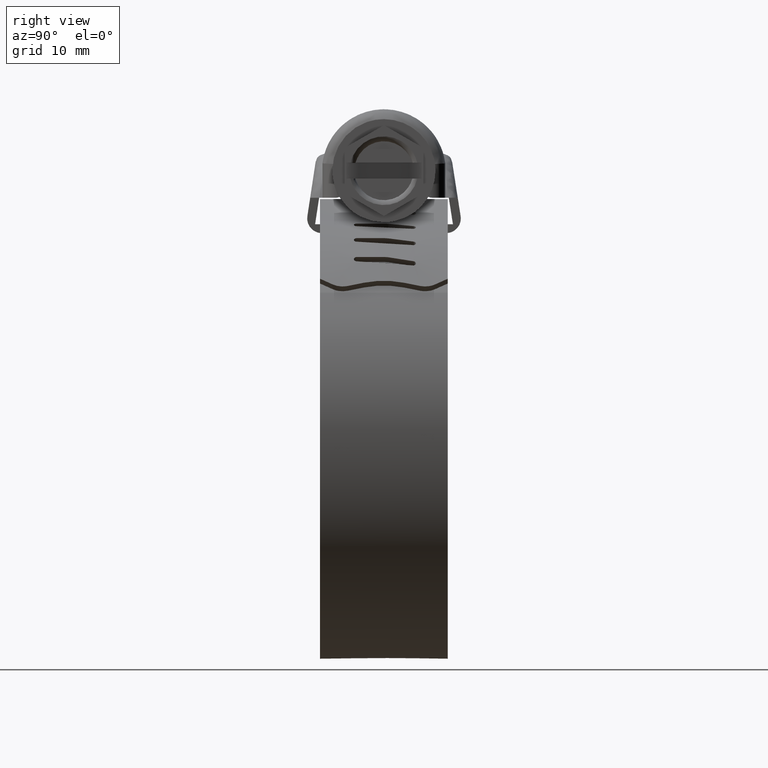
[diagram: clean part render]
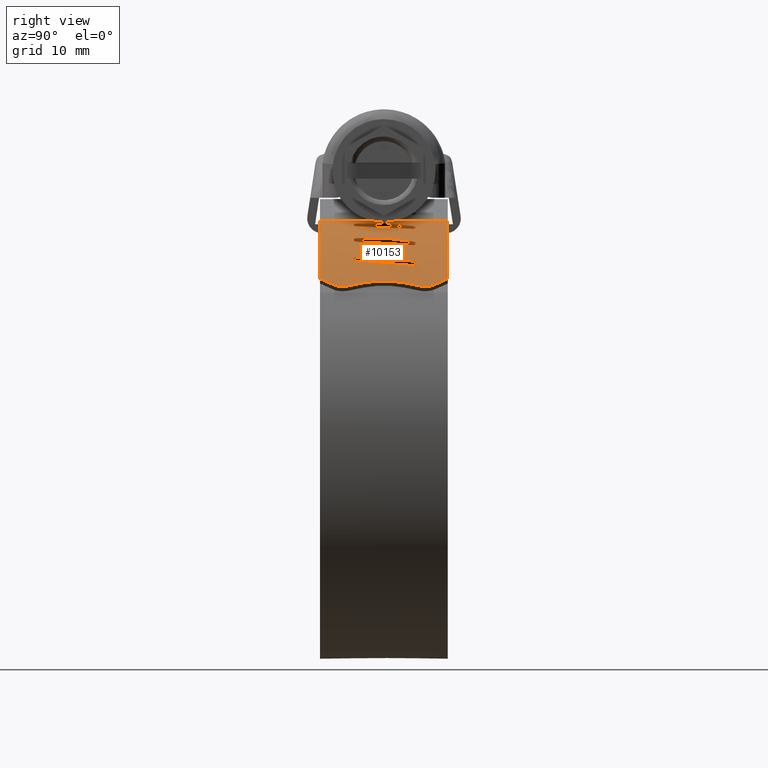
[diagram: same view with one face highlighted and labeled with its STEP entity id]
A machine part, right view. The second image highlights one B-rep face of the part: STEP entity #10153.
In plain terms, the highlighted face is a freeform B-spline surface patch.
Its self-contained STEP definition (entity closure, byte-faithful):
#3702=CARTESIAN_POINT('',(18.860235768504051,-2.061301204482775,4.422310830532255));
#3703=VERTEX_POINT('',#3702);
#3704=CARTESIAN_POINT('',(18.860235768504001,2.061301204482505,4.422310830532265));
#3705=VERTEX_POINT('',#3704);
#3706=CARTESIAN_POINT('',(18.860235768504051,-2.061301204482775,4.422310830532255));
#3707=CARTESIAN_POINT('',(18.751407555141469,-1.452905893504734,4.543712181722550));
#3708=CARTESIAN_POINT('',(18.666232714028379,-0.565320939401362,4.638727439982176));
#3709=CARTESIAN_POINT('',(18.689032266195650,0.825941613407154,4.613293810648815));
#3710=CARTESIAN_POINT('',(18.773964199948580,1.578773815926115,4.518549523315520));
#3711=CARTESIAN_POINT('',(18.860235768504001,2.061301204482505,4.422310830532265));
#3712=B_SPLINE_CURVE_WITH_KNOTS('',3,(#3706,#3707,#3708,#3709,#3710,#3711),.UNSPECIFIED.,.F.,.U.,(4,1,1,4),(5.695947E-009,1.889536444151968,2.671408620243658,4.170007465102428),.UNSPECIFIED.);
#3713=EDGE_CURVE('',#3703,#3705,#3712,.T.);
#3755=CARTESIAN_POINT('',(19.144484927580951,3.681800700682910,4.095337982331530));
#3756=VERTEX_POINT('',#3755);
#3757=CARTESIAN_POINT('',(19.002255019676099,5.226117512658591,4.260517398147540));
#3758=VERTEX_POINT('',#3757);
#3759=CARTESIAN_POINT('',(19.144484927580951,3.681800700682910,4.095337982331530));
#3760=CARTESIAN_POINT('',(19.181063190383171,3.891409389828287,4.052745419829592));
#3761=CARTESIAN_POINT('',(19.203570231554760,4.244876938587939,4.026496191575150));
#3762=CARTESIAN_POINT('',(19.145917114090899,4.774362003495258,4.093469775718822));
#3763=CARTESIAN_POINT('',(19.064005317519481,5.068823243936663,4.188708474425087));
#3764=CARTESIAN_POINT('',(19.002255019676099,5.226117512658591,4.260517398147540));
#3765=B_SPLINE_CURVE_WITH_KNOTS('',3,(#3759,#3760,#3761,#3762,#3763,#3764),.UNSPECIFIED.,.F.,.U.,(4,1,1,4),(0.000000022543403,0.650943980860512,1.051511778456674,1.602310410800159),.UNSPECIFIED.);
#3766=EDGE_CURVE('',#3756,#3758,#3765,.T.);
#3808=CARTESIAN_POINT('',(19.002255019676198,-5.226117512659011,4.260517398147460));
#3809=VERTEX_POINT('',#3808);
#3810=CARTESIAN_POINT('',(19.144484927580951,-3.681800700683175,4.095337982331520));
#3811=VERTEX_POINT('',#3810);
#3812=CARTESIAN_POINT('',(19.002255019676198,-5.226117512659011,4.260517398147460));
#3813=CARTESIAN_POINT('',(19.075139575640510,-5.040237855394073,4.175550735166612));
#3814=CARTESIAN_POINT('',(19.170714116674691,-4.670845714890303,4.064199538139049));
#3815=CARTESIAN_POINT('',(19.200144867570732,-4.133989277316302,4.030135483245905));
#3816=CARTESIAN_POINT('',(19.168290589143030,-3.818855760090745,4.067480931927160));
#3817=CARTESIAN_POINT('',(19.144484927580951,-3.681800700683175,4.095337982331520));
#3818=B_SPLINE_CURVE_WITH_KNOTS('',3,(#3812,#3813,#3814,#3815,#3816,#3817),.UNSPECIFIED.,.F.,.U.,(4,1,1,4),(0.000000022541078,0.650943173411017,1.176695090921629,1.602308423883340),.UNSPECIFIED.);
#3819=EDGE_CURVE('',#3809,#3811,#3818,.T.);
#8995=CARTESIAN_POINT('',(10.311134273978841,-2.805677704154395,10.445537949560920));
#8996=VERTEX_POINT('',#8995);
#9004=CARTESIAN_POINT('',(10.934261120648960,-2.837049000000120,10.184486473074200));
#9005=VERTEX_POINT('',#9004);
#9006=CARTESIAN_POINT('',(10.311134273978841,-2.805677704154395,10.445537949560920));
#9007=CARTESIAN_POINT('',(10.327061852234790,-2.857515475940894,10.439462423630969));
#9008=CARTESIAN_POINT('',(10.367592391638521,-2.929181385207591,10.423297288654449));
#9009=CARTESIAN_POINT('',(10.452759272225091,-3.004591933676027,10.388449817404011));
#9010=CARTESIAN_POINT('',(10.534099919914979,-3.044228042076915,10.354788978575060));
#9011=CARTESIAN_POINT('',(10.630455241647439,-3.058996280872167,10.314538114428251));
#9012=CARTESIAN_POINT('',(10.735316894992041,-3.042773950168921,10.270356012214750));
#9013=CARTESIAN_POINT('',(10.852343480231660,-2.976454919617805,10.220484240819809));
#9014=CARTESIAN_POINT('',(10.912748599654300,-2.891250076864716,10.194145731109320));
#9015=CARTESIAN_POINT('',(10.934261120648960,-2.837049000000120,10.184486473074200));
#9016=B_SPLINE_CURVE_WITH_KNOTS('',3,(#9006,#9007,#9008,#9009,#9010,#9011,#9012,#9013,#9014,#9015),.UNSPECIFIED.,.F.,.U.,(4,1,1,1,1,1,1,4),(0.000000403305156,0.163656819661065,0.245500226237686,0.354626234780510,0.450048887649680,0.559164696190540,0.695574685594701,0.872868828274905),.UNSPECIFIED.);
#9017=EDGE_CURVE('',#8996,#9005,#9016,.T.);
#9047=CARTESIAN_POINT('',(11.530522508266801,3.032451000130135,9.913937310036202));
#9048=VERTEX_POINT('',#9047);
#9049=CARTESIAN_POINT('',(10.934261120648960,-2.837049000000120,10.184486473074200));
#9050=CARTESIAN_POINT('',(11.530522508266801,3.032451000130135,9.913937310036202));
#9051=QUASI_UNIFORM_CURVE('',1,(#9049,#9050),.UNSPECIFIED.,.F.,.U.);
#9052=EDGE_CURVE('',#9005,#9048,#9051,.T.);
#9088=CARTESIAN_POINT('',(10.933575361886760,3.032451000000000,10.184785794542419));
#9089=VERTEX_POINT('',#9088);
#9090=CARTESIAN_POINT('',(11.530522508266801,3.032451000130135,9.913937310036202));
#9091=CARTESIAN_POINT('',(11.512280449857441,3.086089436515238,9.922828350194832));
#9092=CARTESIAN_POINT('',(11.460423252626191,3.167927617901948,9.947294252691641));
#9093=CARTESIAN_POINT('',(11.338989103714241,3.249422267163833,10.003324865413260));
#9094=CARTESIAN_POINT('',(11.220167474716620,3.266810342507276,10.057436046040930));
#9095=CARTESIAN_POINT('',(11.113930973029420,3.237518072064372,10.105302540489960));
#9096=CARTESIAN_POINT('',(11.011049134129649,3.174683427103075,10.151262860718500));
#9097=CARTESIAN_POINT('',(10.955099211976130,3.094404463412464,10.175729352256850));
#9098=CARTESIAN_POINT('',(10.933575361886760,3.032451000000000,10.184785794542419));
#9099=B_SPLINE_CURVE_WITH_KNOTS('',3,(#9090,#9091,#9092,#9093,#9094,#9095,#9096,#9097,#9098),.UNSPECIFIED.,.F.,.U.,(4,1,1,1,1,1,4),(0.000000460466399,0.171985012376095,0.291059097625816,0.463027359930645,0.555651011603341,0.648263365641165,0.846708511131126),.UNSPECIFIED.);
#9100=EDGE_CURVE('',#9048,#9089,#9099,.T.);
#9131=CARTESIAN_POINT('',(10.350124400830721,0.444964697428748,10.429838014906039));
#9132=VERTEX_POINT('',#9131);
#9133=CARTESIAN_POINT('',(10.933575361886760,3.032451000000000,10.184785794542419));
#9134=CARTESIAN_POINT('',(10.350124400830721,0.444964697428748,10.429838014906039));
#9135=QUASI_UNIFORM_CURVE('',1,(#9133,#9134),.UNSPECIFIED.,.F.,.U.);
#9136=EDGE_CURVE('',#9089,#9132,#9135,.T.);
#9168=CARTESIAN_POINT('',(10.311133748468260,0.097700716415243,10.445538160601140));
#9169=VERTEX_POINT('',#9168);
#9170=CARTESIAN_POINT('',(10.350124400830721,0.444964697428748,10.429838014906039));
#9171=CARTESIAN_POINT('',(10.324210256934339,0.331467492969208,10.440280972285310));
#9172=CARTESIAN_POINT('',(10.311092539787470,0.214585278803992,10.445563005720050));
#9173=CARTESIAN_POINT('',(10.311133748468260,0.097700716415243,10.445538160601140));
#9174=B_SPLINE_CURVE_WITH_KNOTS('',3,(#9170,#9171,#9172,#9173),.UNSPECIFIED.,.F.,.U.,(4,4),(1.756224E-009,0.350653274130951),.UNSPECIFIED.);
#9175=EDGE_CURVE('',#9132,#9169,#9174,.T.);
#9200=CARTESIAN_POINT('',(10.311133748468260,0.097700716415243,10.445538160601140));
#9201=CARTESIAN_POINT('',(10.311134273978841,-2.805677704154395,10.445537949560920));
#9202=QUASI_UNIFORM_CURVE('',1,(#9200,#9201),.UNSPECIFIED.,.F.,.U.);
#9203=EDGE_CURVE('',#9169,#8996,#9202,.T.);
#9232=CARTESIAN_POINT('',(13.338752143624040,-2.805677704154365,8.960359314339561));
#9233=VERTEX_POINT('',#9232);
#9241=CARTESIAN_POINT('',(13.916448614853699,-2.837049000000120,8.610071250674910));
#9242=VERTEX_POINT('',#9241);
#9243=CARTESIAN_POINT('',(13.338752143624040,-2.805677704154365,8.960359314339561));
#9244=CARTESIAN_POINT('',(13.357233730704239,-2.870552978850070,8.949959116270845));
#9245=CARTESIAN_POINT('',(13.408279068449600,-2.956055441521406,8.920051817094286));
#9246=CARTESIAN_POINT('',(13.505341575926510,-3.026079888555658,8.862014963123361));
#9247=CARTESIAN_POINT('',(13.584339429026940,-3.053713305164775,8.814409002852566));
#9248=CARTESIAN_POINT('',(13.686256810890031,-3.057089982701196,8.752583843480585));
#9249=CARTESIAN_POINT('',(13.791570517788569,-3.014742210143383,8.688119862672695));
#9250=CARTESIAN_POINT('',(13.873633719567531,-2.928992221500938,8.637222023933941));
#9251=CARTESIAN_POINT('',(13.905726150644259,-2.866203657748596,8.616948181659533));
#9252=CARTESIAN_POINT('',(13.916448614853699,-2.837049000000120,8.610071250674910));
#9253=B_SPLINE_CURVE_WITH_KNOTS('',3,(#9243,#9244,#9245,#9246,#9247,#9248,#9249,#9250,#9251,#9252),.UNSPECIFIED.,.F.,.U.,(4,1,1,1,1,1,1,4),(0.000000403306066,0.204578020980974,0.300064122333784,0.395543297733792,0.490987569614538,0.654651745250787,0.777410935200886,0.872868828275003),.UNSPECIFIED.);
#9254=EDGE_CURVE('',#9233,#9242,#9253,.T.);
#9284=CARTESIAN_POINT('',(14.466170873447920,3.032451000130135,8.254360792028241));
#9285=VERTEX_POINT('',#9284);
#9286=CARTESIAN_POINT('',(13.916448614853699,-2.837049000000120,8.610071250674910));
#9287=CARTESIAN_POINT('',(14.466170873447920,3.032451000130135,8.254360792028241));
#9288=QUASI_UNIFORM_CURVE('',1,(#9286,#9287),.UNSPECIFIED.,.F.,.U.);
#9289=EDGE_CURVE('',#9242,#9285,#9288,.T.);
#9325=CARTESIAN_POINT('',(13.915814631089400,3.032451000000000,8.610468645954061));
#9326=VERTEX_POINT('',#9325);
#9327=CARTESIAN_POINT('',(14.466170873447920,3.032451000130135,8.254360792028241));
#9328=CARTESIAN_POINT('',(14.451984320040721,3.077802779601918,8.264103475321182));
#9329=CARTESIAN_POINT('',(14.411451658305230,3.153557713358673,8.291271013737697));
#9330=CARTESIAN_POINT('',(14.323382546258211,3.229172637656410,8.349195260195279));
#9331=CARTESIAN_POINT('',(14.211774045229649,3.267990544646369,8.421893635711708));
#9332=CARTESIAN_POINT('',(14.094489202490021,3.249428948397128,8.497552222062035));
#9333=CARTESIAN_POINT('',(13.981746031224660,3.167930595941468,8.569490434496172));
#9334=CARTESIAN_POINT('',(13.933153651961650,3.086086575254241,8.599915601496992));
#9335=CARTESIAN_POINT('',(13.915814631089400,3.032451000000000,8.610468645954061));
#9336=B_SPLINE_CURVE_WITH_KNOTS('',3,(#9327,#9328,#9329,#9330,#9331,#9332,#9333,#9334,#9335),.UNSPECIFIED.,.F.,.U.,(4,1,1,1,1,1,4),(0.000000460467698,0.145515601531540,0.264606965657608,0.383682732628606,0.555651011603539,0.674721288158728,0.846708511131259),.UNSPECIFIED.);
#9337=EDGE_CURVE('',#9285,#9326,#9336,.T.);
#9369=CARTESIAN_POINT('',(13.374993399499200,0.444964697428748,8.939068722222391));
#9370=VERTEX_POINT('',#9369);
#9371=CARTESIAN_POINT('',(13.915814631089400,3.032451000000000,8.610468645954061));
#9372=CARTESIAN_POINT('',(13.374993399499200,0.444964697428748,8.939068722222391));
#9373=QUASI_UNIFORM_CURVE('',1,(#9371,#9372),.UNSPECIFIED.,.F.,.U.);
#9374=EDGE_CURVE('',#9326,#9370,#9373,.T.);
#9406=CARTESIAN_POINT('',(13.338751655079919,0.097700716415243,8.960359600737371));
#9407=VERTEX_POINT('',#9406);
#9408=CARTESIAN_POINT('',(13.374993399499200,0.444964697428748,8.939068722222391));
#9409=CARTESIAN_POINT('',(13.350912098337140,0.331467074277783,8.953224603206838));
#9410=CARTESIAN_POINT('',(13.338710090045650,0.214586048470793,8.960392899938618));
#9411=CARTESIAN_POINT('',(13.338751655079919,0.097700716415243,8.960359600737371));
#9412=B_SPLINE_CURVE_WITH_KNOTS('',3,(#9408,#9409,#9410,#9411),.UNSPECIFIED.,.F.,.U.,(4,4),(1.756224E-009,0.350653274130941),.UNSPECIFIED.);
#9413=EDGE_CURVE('',#9370,#9407,#9412,.T.);
#9438=CARTESIAN_POINT('',(13.338751655079919,0.097700716415243,8.960359600737371));
#9439=CARTESIAN_POINT('',(13.338752143624040,-2.805677704154365,8.960359314339561));
#9440=QUASI_UNIFORM_CURVE('',1,(#9438,#9439),.UNSPECIFIED.,.F.,.U.);
#9441=EDGE_CURVE('',#9407,#9233,#9440,.T.);
#9470=CARTESIAN_POINT('',(16.113590865407350,-2.805677704154350,7.043983669741889));
#9471=VERTEX_POINT('',#9470);
#9479=CARTESIAN_POINT('',(16.633165967245699,-2.837049000000120,6.612154242807161));
#9480=VERTEX_POINT('',#9479);
#9481=CARTESIAN_POINT('',(16.113590865407350,-2.805677704154350,7.043983669741889));
#9482=CARTESIAN_POINT('',(16.127050576194360,-2.857508492728618,7.033513080343640));
#9483=CARTESIAN_POINT('',(16.168625880782979,-2.945140485807253,7.000153700940926));
#9484=CARTESIAN_POINT('',(16.259502461620212,-3.027483721312884,6.925703020737222));
#9485=CARTESIAN_POINT('',(16.352382164550960,-3.058682761056781,6.848867988089566));
#9486=CARTESIAN_POINT('',(16.444016449830531,-3.050729440433324,6.772519591219425));
#9487=CARTESIAN_POINT('',(16.529078160750409,-3.005523132857118,6.701116510821692));
#9488=CARTESIAN_POINT('',(16.594834705472039,-2.928997412876849,6.645335131665775));
#9489=CARTESIAN_POINT('',(16.623578104666940,-2.866203718577881,6.620540227844021));
#9490=CARTESIAN_POINT('',(16.633165967245699,-2.837049000000120,6.612154242807161));
#9491=B_SPLINE_CURVE_WITH_KNOTS('',3,(#9481,#9482,#9483,#9484,#9485,#9486,#9487,#9488,#9489,#9490),.UNSPECIFIED.,.F.,.U.,(4,1,1,1,1,1,1,4),(0.000000403306232,0.163656819661968,0.300064122333944,0.422817864104866,0.531892555164627,0.654651745250669,0.777410935200829,0.872868828275043),.UNSPECIFIED.);
#9492=EDGE_CURVE('',#9471,#9480,#9491,.T.);
#9523=CARTESIAN_POINT('',(17.124272648012951,3.032451000130135,6.179096833114021));
#9524=VERTEX_POINT('',#9523);
#9525=CARTESIAN_POINT('',(16.633165967245699,-2.837049000000120,6.612154242807161));
#9526=CARTESIAN_POINT('',(17.124272648012951,3.032451000130135,6.179096833114021));
#9527=QUASI_UNIFORM_CURVE('',1,(#9525,#9526),.UNSPECIFIED.,.F.,.U.);
#9528=EDGE_CURVE('',#9480,#9524,#9527,.T.);
#9564=CARTESIAN_POINT('',(16.632597686007600,3.032451000000000,6.612640981809080));
#9565=VERTEX_POINT('',#9564);
#9566=CARTESIAN_POINT('',(17.124272648012951,3.032451000130135,6.179096833114021));
#9567=CARTESIAN_POINT('',(17.111681996290979,3.077802405790751,6.190829389685025));
#9568=CARTESIAN_POINT('',(17.075610342545840,3.153558079599403,6.223689482011479));
#9569=CARTESIAN_POINT('',(16.997068762742799,3.229188162146847,6.293996527870059));
#9570=CARTESIAN_POINT('',(16.913517022994650,3.261647129399310,6.368121193479372));
#9571=CARTESIAN_POINT('',(16.823223837968008,3.257113660962332,6.447675973355693));
#9572=CARTESIAN_POINT('',(16.741546191857712,3.214147983580408,6.519099525618815));
#9573=CARTESIAN_POINT('',(16.672909536626658,3.134998842157520,6.578520883500346));
#9574=CARTESIAN_POINT('',(16.643422484811850,3.069549630824142,6.603611765971082));
#9575=CARTESIAN_POINT('',(16.632597686007600,3.032451000000000,6.612640981809080));
#9576=B_SPLINE_CURVE_WITH_KNOTS('',3,(#9566,#9567,#9568,#9569,#9570,#9571,#9572,#9573,#9574,#9575),.UNSPECIFIED.,.F.,.U.,(4,1,1,1,1,1,1,4),(0.000000460465615,0.145515601529981,0.264606965656469,0.383682732627827,0.489476131891809,0.621799613251964,0.727655670169046,0.846708511131274),.UNSPECIFIED.);
#9577=EDGE_CURVE('',#9524,#9565,#9576,.T.);
#9608=CARTESIAN_POINT('',(16.146287092492351,0.444964697428749,7.017570137708100));
#9609=VERTEX_POINT('',#9608);
#9610=CARTESIAN_POINT('',(16.632597686007600,3.032451000000000,6.612640981809080));
#9611=CARTESIAN_POINT('',(16.146287092492351,0.444964697428749,7.017570137708100));
#9612=QUASI_UNIFORM_CURVE('',1,(#9610,#9611),.UNSPECIFIED.,.F.,.U.);
#9613=EDGE_CURVE('',#9565,#9609,#9612,.T.);
#9645=CARTESIAN_POINT('',(16.113590424561298,0.097700716415243,7.043984025205139));
#9646=VERTEX_POINT('',#9645);
#9647=CARTESIAN_POINT('',(16.146287092492351,0.444964697428749,7.017570137708100));
#9648=CARTESIAN_POINT('',(16.124558489768692,0.331467461511624,7.035133357155047));
#9649=CARTESIAN_POINT('',(16.113558287083411,0.214585366601614,7.044019827656783));
#9650=CARTESIAN_POINT('',(16.113590424561298,0.097700716415243,7.043984025205139));
#9651=B_SPLINE_CURVE_WITH_KNOTS('',3,(#9647,#9648,#9649,#9650),.UNSPECIFIED.,.F.,.U.,(4,4),(1.756240E-009,0.350653274130952),.UNSPECIFIED.);
#9652=EDGE_CURVE('',#9609,#9646,#9651,.T.);
#9677=CARTESIAN_POINT('',(16.113590424561298,0.097700716415243,7.043984025205139));
#9678=CARTESIAN_POINT('',(16.113590865407350,-2.805677704154350,7.043983669741889));
#9679=QUASI_UNIFORM_CURVE('',1,(#9677,#9678),.UNSPECIFIED.,.F.,.U.);
#9680=EDGE_CURVE('',#9646,#9471,#9679,.T.);
#9704=CARTESIAN_POINT('',(18.489079278440801,-6.500000000000000,4.831032631837420));
#9705=VERTEX_POINT('',#9704);
#9706=CARTESIAN_POINT('',(18.489079278440801,-6.500000000000000,4.831032631837420));
#9707=CARTESIAN_POINT('',(19.002255019676198,-5.226117512659011,4.260517398147460));
#9708=QUASI_UNIFORM_CURVE('',1,(#9706,#9707),.UNSPECIFIED.,.F.,.U.);
#9709=EDGE_CURVE('',#9705,#3809,#9708,.T.);
#9724=CARTESIAN_POINT('',(18.489079278440450,6.499999999999840,4.831032631837601));
#9725=VERTEX_POINT('',#9724);
#9726=CARTESIAN_POINT('',(19.002255019676099,5.226117512658591,4.260517398147540));
#9727=CARTESIAN_POINT('',(18.489079278440450,6.499999999999840,4.831032631837601));
#9728=QUASI_UNIFORM_CURVE('',1,(#9726,#9727),.UNSPECIFIED.,.F.,.U.);
#9729=EDGE_CURVE('',#3758,#9725,#9728,.T.);
#9758=CARTESIAN_POINT('',(19.144484927580951,-3.681800700683175,4.095337982331520));
#9759=CARTESIAN_POINT('',(18.860235768504051,-2.061301204482775,4.422310830532255));
#9760=QUASI_UNIFORM_CURVE('',1,(#9758,#9759),.UNSPECIFIED.,.F.,.U.);
#9761=EDGE_CURVE('',#3811,#3703,#9760,.T.);
#9772=CARTESIAN_POINT('',(18.860235768504001,2.061301204482505,4.422310830532265));
#9773=CARTESIAN_POINT('',(19.144484927580951,3.681800700682910,4.095337982331530));
#9774=QUASI_UNIFORM_CURVE('',1,(#9772,#9773),.UNSPECIFIED.,.F.,.U.);
#9775=EDGE_CURVE('',#3705,#3756,#9774,.T.);
#9801=CARTESIAN_POINT('',(9.408111426015370,-6.500000000000000,10.786125742977420));
#9802=VERTEX_POINT('',#9801);
#9812=CARTESIAN_POINT('',(9.408111426015370,6.499999999999840,10.786125742977420));
#9813=VERTEX_POINT('',#9812);
#9814=CARTESIAN_POINT('',(9.408111426015370,6.499999999999840,10.786125742977420));
#9815=CARTESIAN_POINT('',(9.408111426015370,-6.500000000000000,10.786125742977420));
#9816=QUASI_UNIFORM_CURVE('',1,(#9814,#9815),.UNSPECIFIED.,.F.,.U.);
#9817=EDGE_CURVE('',#9813,#9802,#9816,.T.);
#10035=CARTESIAN_POINT('',(18.489079278440801,-6.500000000000000,4.831032631837420));
#10036=CARTESIAN_POINT('',(17.497165817630620,-6.500000000000001,5.897350586551053));
#10037=CARTESIAN_POINT('',(15.951503470681390,-6.500000000000003,7.267380180600934));
#10038=CARTESIAN_POINT('',(12.911642453282210,-6.499999999999995,9.302053039964575));
#10039=CARTESIAN_POINT('',(10.916083206016070,-6.500000000000010,10.253923169329980));
#10040=CARTESIAN_POINT('',(9.408111426015370,-6.500000000000000,10.786125742977420));
#10041=B_SPLINE_CURVE_WITH_KNOTS('',3,(#10035,#10036,#10037,#10038,#10039,#10040),.UNSPECIFIED.,.F.,.U.,(4,1,1,4),(2.394433E-009,4.368965978851207,6.167943364657314,10.965242807142900),.UNSPECIFIED.);
#10042=EDGE_CURVE('',#9705,#9802,#10041,.T.);
#10071=CARTESIAN_POINT('',(18.489079278440450,6.499999999999840,4.831032631837601));
#10072=CARTESIAN_POINT('',(17.886086486801091,6.499999999999852,5.479111173614756));
#10073=CARTESIAN_POINT('',(16.645666897698732,6.499999999999834,6.665210477999922));
#10074=CARTESIAN_POINT('',(14.551309241845310,6.499999999999841,8.257649776714406));
#10075=CARTESIAN_POINT('',(12.164490710922459,6.499999999999850,9.672973360292344));
#10076=CARTESIAN_POINT('',(10.377458803649830,6.499999999999848,10.443873277005601));
#10077=CARTESIAN_POINT('',(9.408111426015370,6.499999999999840,10.786125742977420));
#10078=B_SPLINE_CURVE_WITH_KNOTS('',3,(#10071,#10072,#10073,#10074,#10075,#10076,#10077),.UNSPECIFIED.,.F.,.U.,(4,1,1,1,4),(2.401652E-009,2.655644663532389,5.139961935243442,7.881267438059701,10.965242807142520),.UNSPECIFIED.);
#10079=EDGE_CURVE('',#9725,#9813,#10078,.T.);
#10103=CARTESIAN_POINT('',(8.847767324460735,6.824999999999836,10.975840590813684));
#10104=CARTESIAN_POINT('',(8.847767324460735,-6.833124999999996,10.975840590813684));
#10105=CARTESIAN_POINT('',(15.309883672396396,6.824999999999838,8.881211064295489));
#10106=CARTESIAN_POINT('',(15.309883672396396,-6.833124999999998,8.881211064295489));
#10107=CARTESIAN_POINT('',(19.565779988212977,6.824999999999838,3.586518712832735));
#10108=CARTESIAN_POINT('',(19.565779988212977,-6.833124999999997,3.586518712832735));
#10116=(BOUNDED_SURFACE()B_SPLINE_SURFACE(1,2,((#10103,#10105,#10107),(#10104,#10106,#10108)),.UNSPECIFIED.,.F.,.F.,.U.)B_SPLINE_SURFACE_WITH_KNOTS((2,2),(3,3),(0.0,13.658124999999840),(0.0,13.296233570334540),.UNSPECIFIED.)GEOMETRIC_REPRESENTATION_ITEM()RATIONAL_B_SPLINE_SURFACE(((0.998946240957237,0.956024878380251,0.996509116905474),(0.998946240957237,0.956024878380251,0.996509116905474)))REPRESENTATION_ITEM('')SURFACE());
#10117=ORIENTED_EDGE('',*,*,#9709,.T.);
#10118=ORIENTED_EDGE('',*,*,#3819,.T.);
#10119=ORIENTED_EDGE('',*,*,#9761,.T.);
#10120=ORIENTED_EDGE('',*,*,#3713,.T.);
#10121=ORIENTED_EDGE('',*,*,#9775,.T.);
#10122=ORIENTED_EDGE('',*,*,#3766,.T.);
#10123=ORIENTED_EDGE('',*,*,#9729,.T.);
#10124=ORIENTED_EDGE('',*,*,#10079,.T.);
#10125=ORIENTED_EDGE('',*,*,#9817,.T.);
#10126=ORIENTED_EDGE('',*,*,#10042,.F.);
#10127=EDGE_LOOP('',(#10117,#10118,#10119,#10120,#10121,#10122,#10123,#10124,#10125,#10126));
#10128=FACE_OUTER_BOUND('',#10127,.T.);
#10129=ORIENTED_EDGE('',*,*,#9441,.F.);
#10130=ORIENTED_EDGE('',*,*,#9413,.F.);
#10131=ORIENTED_EDGE('',*,*,#9374,.F.);
#10132=ORIENTED_EDGE('',*,*,#9337,.F.);
#10133=ORIENTED_EDGE('',*,*,#9289,.F.);
#10134=ORIENTED_EDGE('',*,*,#9254,.F.);
#10135=EDGE_LOOP('',(#10129,#10130,#10131,#10132,#10133,#10134));
#10136=FACE_BOUND('',#10135,.T.);
#10137=ORIENTED_EDGE('',*,*,#9680,.F.);
#10138=ORIENTED_EDGE('',*,*,#9652,.F.);
#10139=ORIENTED_EDGE('',*,*,#9613,.F.);
#10140=ORIENTED_EDGE('',*,*,#9577,.F.);
#10141=ORIENTED_EDGE('',*,*,#9528,.F.);
#10142=ORIENTED_EDGE('',*,*,#9492,.F.);
#10143=EDGE_LOOP('',(#10137,#10138,#10139,#10140,#10141,#10142));
#10144=FACE_BOUND('',#10143,.T.);
#10145=ORIENTED_EDGE('',*,*,#9203,.F.);
#10146=ORIENTED_EDGE('',*,*,#9175,.F.);
#10147=ORIENTED_EDGE('',*,*,#9136,.F.);
#10148=ORIENTED_EDGE('',*,*,#9100,.F.);
#10149=ORIENTED_EDGE('',*,*,#9052,.F.);
#10150=ORIENTED_EDGE('',*,*,#9017,.F.);
#10151=EDGE_LOOP('',(#10145,#10146,#10147,#10148,#10149,#10150));
#10152=FACE_BOUND('',#10151,.T.);
#10153=ADVANCED_FACE('',(#10128,#10136,#10144,#10152),#10116,.T.);